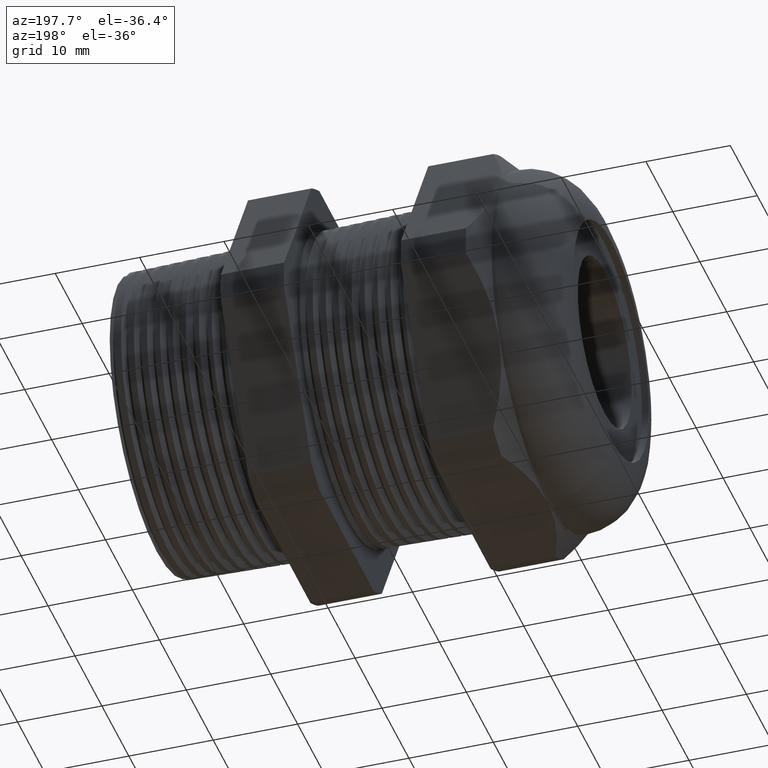
[diagram: clean part render]
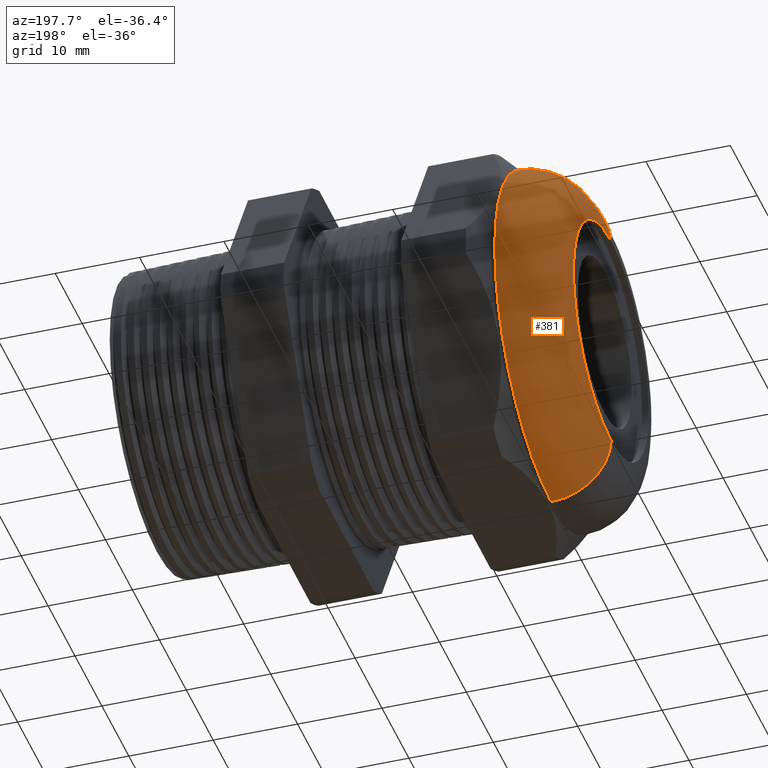
[diagram: same view with one face highlighted and labeled with its STEP entity id]
A machine part, auxiliary view. The second image highlights one B-rep face of the part: STEP entity #381.
In plain terms, the highlighted toroidal blend (fillet) surface has major radius 13.843 mm and minor (blend) radius 7.112 mm.
Its self-contained STEP definition (entity closure, byte-faithful):
#353 = ORIENTED_EDGE ( 'NONE', *, *, #369, .T. ) ;
#355 = EDGE_CURVE ( 'NONE', #365, #360, #2078, .T. ) ;
#360 = VERTEX_POINT ( 'NONE', #2066 ) ;
#361 = VERTEX_POINT ( 'NONE', #2065 ) ;
#362 = VERTEX_POINT ( 'NONE', #2064 ) ;
#363 = ORIENTED_EDGE ( 'NONE', *, *, #370, .F. ) ;
#364 = EDGE_CURVE ( 'NONE', #362, #361, #2063, .T. ) ;
#365 = VERTEX_POINT ( 'NONE', #2058 ) ;
#366 = ORIENTED_EDGE ( 'NONE', *, *, #355, .T. ) ;
#369 = EDGE_CURVE ( 'NONE', #362, #365, #2052, .T. ) ;
#370 = EDGE_CURVE ( 'NONE', #361, #360, #2112, .T. ) ;
#373 = EDGE_LOOP ( 'NONE', ( #375, #353, #366, #363 ) ) ;
#375 = ORIENTED_EDGE ( 'NONE', *, *, #364, .F. ) ;
#381 = ADVANCED_FACE ( 'NONE', ( #2091 ), #2090, .T. ) ;
#2052 = CIRCLE ( 'NONE', #2117, 0.2800000000000000300 ) ;
#2058 = CARTESIAN_POINT ( 'NONE',  ( -1.840000000000000100, 0.0000000000000000000, -0.5512500000000000200 ) ) ;
#2059 = DIRECTION ( 'NONE',  ( 0.0000000000000000000, 0.0000000000000000000, 1.000000000000000000 ) ) ;
#2060 = DIRECTION ( 'NONE',  ( 1.000000000000000000, 0.0000000000000000000, 0.0000000000000000000 ) ) ;
#2061 = CARTESIAN_POINT ( 'NONE',  ( -1.560069763155174800, 0.0000000000000000000, 0.0000000000000000000 ) ) ;
#2062 = AXIS2_PLACEMENT_3D ( 'NONE', #2061, #2060, #2059 ) ;
#2063 = CIRCLE ( 'NONE', #2062, 0.8250000000000000700 ) ;
#2064 = CARTESIAN_POINT ( 'NONE',  ( -1.560069763155174800, 0.0000000000000000000, -0.8250000000000000700 ) ) ;
#2065 = CARTESIAN_POINT ( 'NONE',  ( -1.560069763155174800, 1.010333609296566500E-016, 0.8250000000000000700 ) ) ;
#2066 = CARTESIAN_POINT ( 'NONE',  ( -1.840000000000000100, 6.750865480299784700E-017, 0.5512500000000000200 ) ) ;
#2074 = DIRECTION ( 'NONE',  ( 0.0000000000000000000, 0.0000000000000000000, -1.000000000000000000 ) ) ;
#2075 = DIRECTION ( 'NONE',  ( 1.000000000000000000, 0.0000000000000000000, 0.0000000000000000000 ) ) ;
#2076 = CARTESIAN_POINT ( 'NONE',  ( -1.840000000000000100, 0.0000000000000000000, 0.0000000000000000000 ) ) ;
#2077 = AXIS2_PLACEMENT_3D ( 'NONE', #2076, #2075, #2074 ) ;
#2078 = CIRCLE ( 'NONE', #2077, 0.5512500000000000200 ) ;
#2085 = DIRECTION ( 'NONE',  ( 0.0000000000000000000, 0.0000000000000000000, 1.000000000000000000 ) ) ;
#2086 = DIRECTION ( 'NONE',  ( -1.000000000000000000, 0.0000000000000000000, 0.0000000000000000000 ) ) ;
#2087 = CARTESIAN_POINT ( 'NONE',  ( -1.560069763155174800, 0.0000000000000000000, 0.0000000000000000000 ) ) ;
#2088 = AXIS2_PLACEMENT_3D ( 'NONE', #2087, #2086, #2085 ) ;
#2090 = TOROIDAL_SURFACE ( 'NONE', #2088, 0.5450000000000000400, 0.2800000000000000300 ) ;
#2091 = FACE_OUTER_BOUND ( 'NONE', #373, .T. ) ;
#2108 = DIRECTION ( 'NONE',  ( 0.0000000000000000000, 0.0000000000000000000, -1.000000000000000000 ) ) ;
#2109 = DIRECTION ( 'NONE',  ( 0.0000000000000000000, -1.000000000000000000, 0.0000000000000000000 ) ) ;
#2110 = CARTESIAN_POINT ( 'NONE',  ( -1.560069763155174800, 0.0000000000000000000, 0.5450000000000000400 ) ) ;
#2111 = AXIS2_PLACEMENT_3D ( 'NONE', #2110, #2109, #2108 ) ;
#2112 = CIRCLE ( 'NONE', #2111, 0.2800000000000000300 ) ;
#2114 = DIRECTION ( 'NONE',  ( 0.0000000000000000000, -1.224646799147353000E-016, 1.000000000000000000 ) ) ;
#2115 = DIRECTION ( 'NONE',  ( 0.0000000000000000000, 1.000000000000000000, 1.224646799147353200E-016 ) ) ;
#2116 = CARTESIAN_POINT ( 'NONE',  ( -1.560069763155174800, 6.674325055353075000E-017, -0.5450000000000000400 ) ) ;
#2117 = AXIS2_PLACEMENT_3D ( 'NONE', #2116, #2115, #2114 ) ;